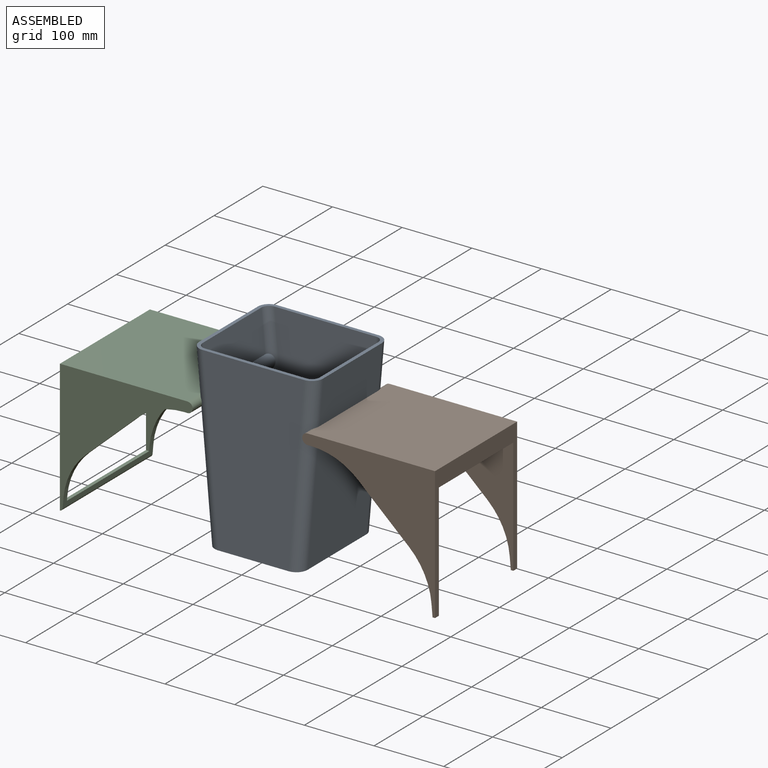
[diagram: assembled view]
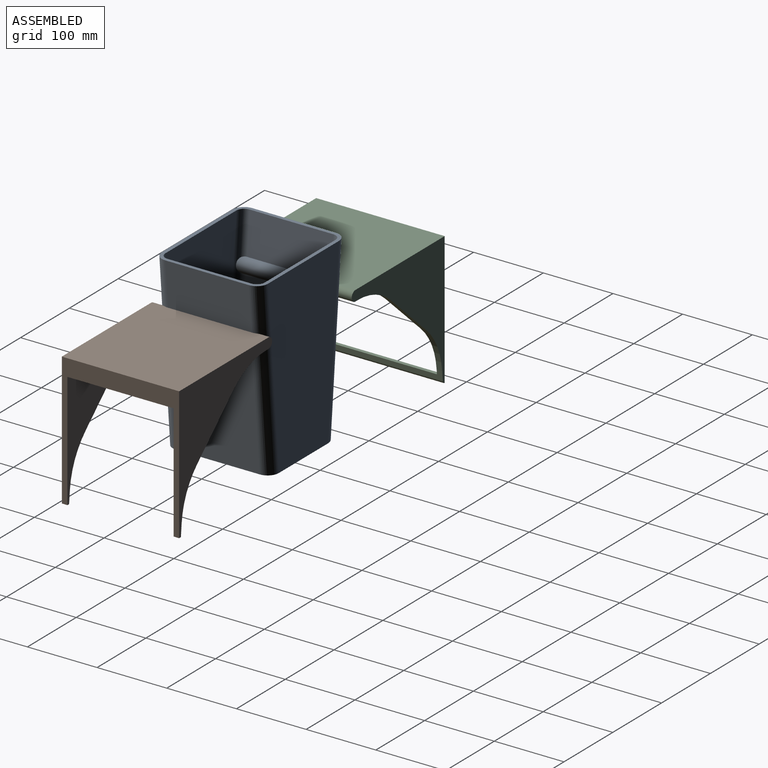
[diagram: assembled view, second angle]
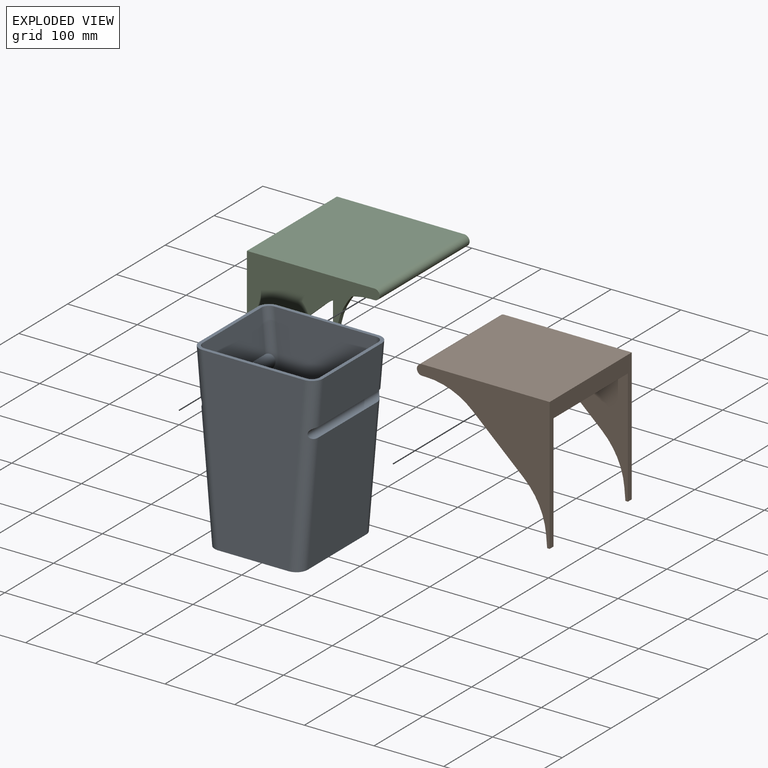
[diagram: exploded view]
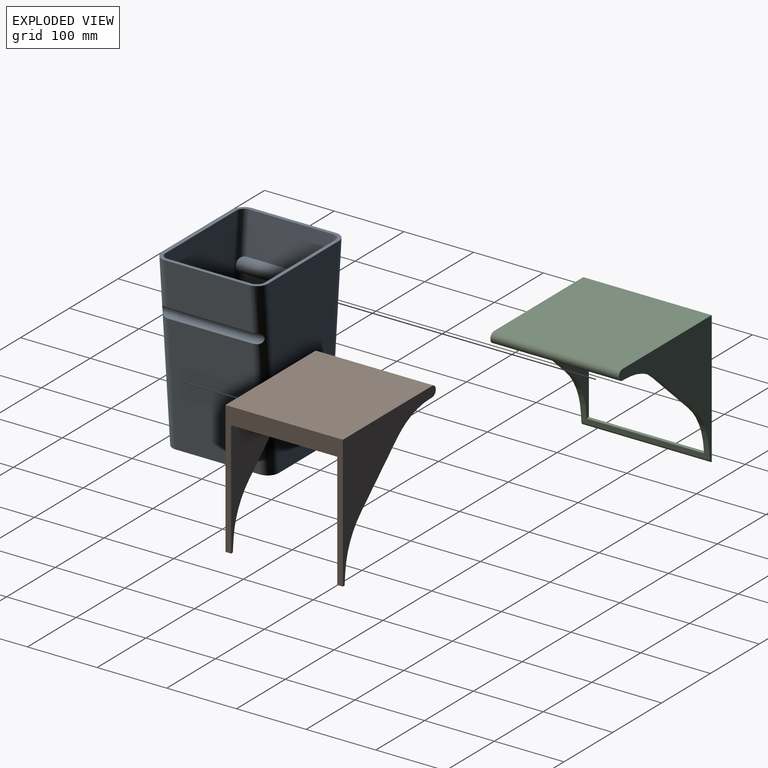
[diagram: exploded view, second angle]
ASSEMBLY  parts=3 mates=2
PART A: 27 faces, bbox 177.8x152.4x256.8 mm
  f0: cylinder r=7.5mm len=146.65mm, axis (0,1,0), area 3142.1mm2, adj f1,f7,f11,f13
  f1: plane 175.61x120.4mm, normal (-1,0,-0.09), area 21224.7mm2, adj f0,f2,f11,f13
  f2: plane 152.4x133.36mm, normal (0,0,-1), area 20102.8mm2, adj f1,f3,f8,f9,f10,f11,f12,f13
  f3: plane 175.61x120.4mm, normal (1,0,-0.09), area 21224.7mm2, adj f2,f4,f10,f12
  f4: cylinder r=7.5mm len=146.65mm, axis (0,1,0), area 3142.1mm2, adj f3,f5,f10,f12
  f5: plane 120.4x63.5mm, normal (1,0,-0.09), area 7674.6mm2, adj f4,f6,f10,f12
  f6: plane 177.8x152.4mm, normal (0,0,1), area 3091.1mm2, adj f5,f7,f8,f9,f10,f11,f12,f13
  f7: plane 120.4x63.5mm, normal (-1,0,-0.09), area 7674.6mm2, adj f0,f6,f11,f13
  f8: plane 254x145.68mm, normal (0,-1,0), area 31357.7mm2, adj f2,f6,f12,f13
  f9: plane 254x145.68mm, normal (0,1,0), area 31357.7mm2, adj f2,f6,f10,f11
  f10: cylinder r=16mm len=256.79mm, axis (0.09,0,1), area 6211.6mm2, adj f2,f3,f4,f5,f6,f9
  f11: cylinder r=16mm len=256.79mm, axis (0.09,0,-1), area 6211.6mm2, adj f0,f1,f2,f6,f7,f9
  f12: cylinder r=16mm len=256.79mm, axis (-0.09,0,-1), area 6211.6mm2, adj f2,f3,f4,f5,f6,f8
  f13: cylinder r=16mm len=256.79mm, axis (-0.09,0,1), area 6211.6mm2, adj f0,f1,f2,f6,f7,f8
  f14: cylinder r=12.5mm len=140.77mm, axis (0,1,0), area 3774.3mm2, adj f15,f20,f24,f26
  f15: plane 167.39x120.4mm, normal (1,0,0.09), area 20230.4mm2, adj f14,f16,f24,f26
  f16: plane 142.4x124.19mm, normal (0,0,1), area 17580.7mm2, adj f15,f17,f21,f22,f23,f24,f25,f26
  f17: plane 167.39x120.4mm, normal (-1,0,0.09), area 20230.4mm2, adj f16,f18,f23,f25
  f18: cylinder r=12.5mm len=140.77mm, axis (0,1,0), area 3774.3mm2, adj f17,f19,f23,f25
  f19: plane 120.4x59.4mm, normal (-1,0,0.09), area 7179.2mm2, adj f6,f18,f23,f25
  f20: plane 120.4x59.4mm, normal (1,0,0.09), area 7179.2mm2, adj f6,f14,f24,f26
  f21: plane 249x145.68mm, normal (0,1,0), area 30849.4mm2, adj f6,f16,f25,f26
  f22: plane 249x145.68mm, normal (0,-1,0), area 30849.4mm2, adj f6,f16,f23,f24
  f23: cylinder r=11mm len=250.92mm, axis (0.09,0,1), area 4083.8mm2, adj f6,f16,f17,f18,f19,f22
  f24: cylinder r=11mm len=250.92mm, axis (0.09,0,-1), area 4083.8mm2, adj f6,f14,f15,f16,f20,f22
  f25: cylinder r=11mm len=250.92mm, axis (-0.09,0,-1), area 4083.8mm2, adj f6,f16,f17,f18,f19,f21
  f26: cylinder r=11mm len=250.92mm, axis (-0.09,0,1), area 4083.8mm2, adj f6,f14,f15,f16,f20,f21
PART B: 20 faces, bbox 190.5x168.4x190.5 mm
  f0: plane 73.12x67mm, normal (-0.74,0,0.68), area 793.4mm2, adj f12,f13,f17,f18
  f1: plane 73.12x67mm, normal (-0.74,0,0.68), area 793.4mm2, adj f11,f14,f16,f19
  f2: plane 8x5.22mm, normal (-1,0,0), area 41.8mm2, adj f6,f11,f14,f16
  f3: plane 17.22x8mm, normal (-0.09,0,1), area 138.3mm2, adj f9,f12,f13,f18
  f4: plane 190.5x168.4mm, normal (0,0,-1), area 6731mm2, adj f5,f7,f9,f11,f12,f13,f14,f15
  f5: plane 8x3.53mm, normal (-1,0,0), area 28.3mm2, adj f4,f10,f11,f14
  f6: cylinder r=7.5mm len=168.4mm, axis (0,1,0), area 5563.8mm2, adj f2,f7,f8,f11,f12,f13,f14,f15
  f7: plane 183x168.4mm, normal (1,0,0), area 30817.2mm2, adj f4,f6,f11,f12
  f8: plane 8x5.22mm, normal (-1,0,0), area 41.8mm2, adj f6,f12,f13,f17
  f9: plane 8x3.53mm, normal (-1,0,0), area 28.3mm2, adj f3,f4,f12,f13
  f10: plane 17.22x8mm, normal (-0.09,0,1), area 138.3mm2, adj f5,f11,f14,f19
  f11: plane 190.5x190.5mm, normal (0,1,0), area 12333.3mm2, adj f1,f2,f4,f5,f6,f7,f10,f16
  f12: plane 190.5x190.5mm, normal (0,-1,0), area 12333.3mm2, adj f0,f3,f4,f6,f7,f8,f9,f17
  f13: plane 183x181.7mm, normal (0,1,0), area 9250.6mm2, adj f0,f3,f4,f6,f8,f9,f15,f17
  f14: plane 183x181.7mm, normal (0,-1,0), area 9250.6mm2, adj f1,f2,f4,f5,f6,f10,f15,f16
  f15: plane 175.61x152.4mm, normal (-1,0,0.09), area 26865.8mm2, adj f4,f6,f13,f14
  f16: cylinder r=100mm len=67.56mm, axis (0,-1,0), area 593.4mm2, adj f1,f2,f11,f14
  f17: cylinder r=100mm len=67.56mm, axis (0,-1,0), area 593.4mm2, adj f0,f8,f12,f13
  f18: cylinder r=100mm len=65.01mm, axis (0,1,0), area 593.4mm2, adj f0,f3,f12,f13
  f19: cylinder r=100mm len=65.01mm, axis (0,1,0), area 593.4mm2, adj f1,f10,f11,f14
PART C: 20 faces, bbox 190.5x184.4x190.5 mm
  f0: plane 190.5x184.4mm, normal (0,0,-1), area 7467.6mm2, adj f3,f4,f8,f9,f10,f11,f12,f13
  f1: plane 184.4x13.15mm, normal (0.09,0,1), area 1358mm2, adj f8,f9,f10,f11,f12,f13,f18,f19
  f2: cylinder r=7.5mm len=184.4mm, axis (0,1,0), area 5940.8mm2, adj f3,f4,f5,f6,f7,f8,f9
  f3: plane 184.4x183mm, normal (-1,0,0), area 33745.2mm2, adj f0,f2,f8,f9
  f4: plane 184.4x183mm, normal (1,0,0), area 18979.2mm2, adj f0,f2,f5,f6,f7,f8,f9,f10
  f5: plane 152.4x70.84mm, normal (1,0,0.09), area 10837.2mm2, adj f2,f4,f6,f7
  f6: plane 78.23x6.2mm, normal (0,1,0), area 230.8mm2, adj f2,f4,f5
  f7: plane 78.23x6.2mm, normal (0,-1,0), area 230.8mm2, adj f2,f4,f5
  f8: plane 190.5x190.5mm, normal (0,-1,0), area 12329.9mm2, adj f0,f1,f2,f3,f4,f12,f15,f17
  f9: plane 190.5x190.5mm, normal (0,1,0), area 12329.9mm2, adj f0,f1,f2,f3,f4,f12,f14,f16
  f10: plane 177.78x164.65mm, normal (0,-1,0), area 9455.6mm2, adj f0,f1,f4,f13,f14,f16,f18
  f11: plane 177.78x164.65mm, normal (0,1,0), area 9455.6mm2, adj f0,f1,f4,f13,f15,f17,f19
  f12: cylinder r=4.5mm len=184.4mm, axis (0,1,0), area 1121.3mm2, adj f0,f1,f8,f9
  f13: plane 168.4x4.48mm, normal (-1,0,0.09), area 757.8mm2, adj f0,f1,f10,f11
  f14: plane 73.12x67mm, normal (0.74,0,0.68), area 793.4mm2, adj f9,f10,f16,f18
  f15: plane 73.12x67mm, normal (0.74,0,0.68), area 793.4mm2, adj f8,f11,f17,f19
  f16: cylinder r=100mm len=67.56mm, axis (0,1,0), area 593.4mm2, adj f4,f9,f10,f14
  f17: cylinder r=100mm len=67.56mm, axis (0,1,0), area 593.4mm2, adj f4,f8,f11,f15
  f18: cylinder r=100mm len=65.01mm, axis (0,-1,0), area 593.4mm2, adj f1,f9,f10,f14
  f19: cylinder r=100mm len=65.01mm, axis (0,-1,0), area 593.4mm2, adj f1,f8,f11,f15
PLACE A at identity fixed
PLACE B rot(axis=(0,-1,0),90deg) t=(266.34,0,99.66)mm
PLACE C rot(axis=(0,1,0),90deg) t=(-266.34,0,99.66)mm
MATE revolute A.f0 <-> C.f2  axis (0,1,0) through (-83.34,0,183)mm
MATE revolute A.f4 <-> B.f6  axis (0,1,0) through (83.34,0,183)mm
